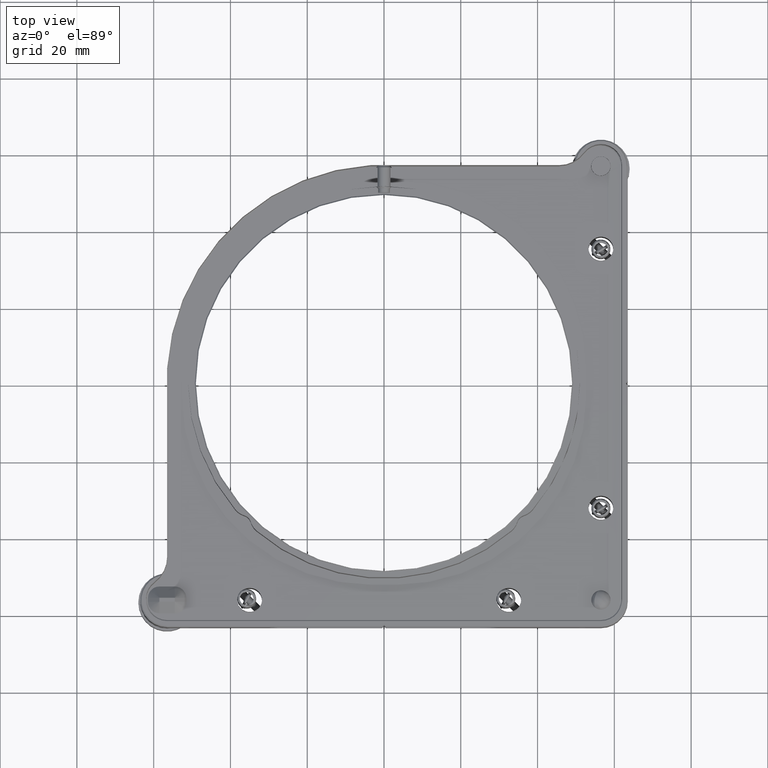
[diagram: clean part render]
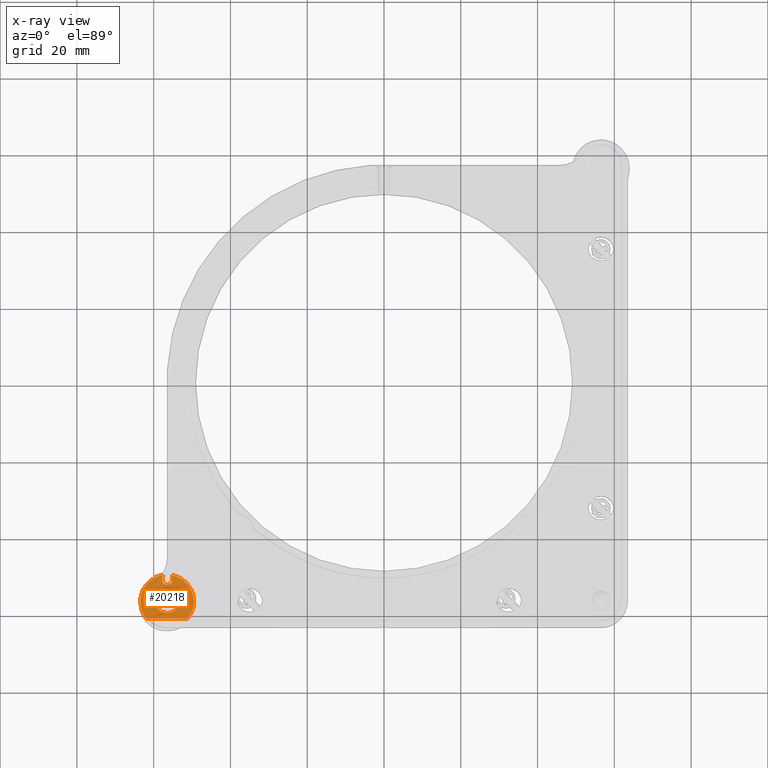
[diagram: x-ray — body ghosted, one internal face saturated and labeled with its STEP entity id]
A machine part, top view, then the same camera in x-ray: the body is ghosted and one INTERNAL B-rep face — a face not visible from any outside direction — is saturated and labeled: STEP entity #20218.
In plain terms, the highlighted planar face has unit normal (0, -0, -1).
Its self-contained STEP definition (entity closure, byte-faithful):
#171 = CARTESIAN_POINT ( 'NONE',  ( -52.87879094788482348, -50.50579296449406996, -11.25000000000001243 ) ) ;
#241 = B_SPLINE_CURVE_WITH_KNOTS ( 'NONE', 3,
 ( #13527, #3470, #19975, #13201, #3679, #5322, #13418, #10130, #14940, #20086, #8701, #20190, #5109, #5215, #5000, #11772, #16801, #9911, #18450, #1829 ),
 .UNSPECIFIED., .F., .F.,
 ( 4, 1, 1, 1, 2, 2, 2, 1, 1, 1, 2, 2, 4 ),
 ( 0.000000000000000000, 0.06250000000001393330, 0.09375000000002067790, 0.1093750000000226208, 0.1171875000000225098, 0.1250000000000223987, 0.2500000000000135447, 0.3125000000000083822, 0.3437500000000051625, 0.3593750000000031086, 0.3671875000000034972, 0.3750000000000038303, 0.5000000000000000000 ),
 .UNSPECIFIED. ) ;
#245 = FACE_BOUND ( 'NONE', #8876, .T. ) ;
#286 = CARTESIAN_POINT ( 'NONE',  ( -61.86190264738180389, -60.99999999999996447, -11.50000000000000711 ) ) ;
#373 = CARTESIAN_POINT ( 'NONE',  ( -55.01088595104975099, -53.86290914704390076, -11.75000000000000178 ) ) ;
#384 = CARTESIAN_POINT ( 'NONE',  ( -50.99856001056181753, -52.16649219538504667, -11.25000000000001421 ) ) ;
#493 = CARTESIAN_POINT ( 'NONE',  ( -49.50000000000000000, -56.49999999999997158, -11.25000000000001421 ) ) ;
#507 = B_SPLINE_CURVE_WITH_KNOTS ( 'NONE', 3,
 ( #7433, #11036, #13996, #14209, #14319, #6011, #20668, #19027, #5694, #4051, #12677, #17717, #11355, #3062, #16395, #13002, #16173, #16068, #13220, #14851 ),
 .UNSPECIFIED., .F., .F.,
 ( 4, 1, 1, 1, 2, 2, 2, 1, 1, 1, 2, 2, 4 ),
 ( 0.000000000000000000, 0.06249999999999666933, 0.09374999999999500400, 0.1093749999999944905, 0.1171874999999942407, 0.1249999999999939770, 0.2500000000000032196, 0.3125000000000071054, 0.3437500000000090483, 0.3593750000000104916, 0.3671875000000097700, 0.3750000000000091038, 0.5000000000000000000 ),
 .UNSPECIFIED. ) ;
#590 = CARTESIAN_POINT ( 'NONE',  ( -55.48473338360999207, -53.67688504029939622, -11.74999999999999645 ) ) ;
#907 = CARTESIAN_POINT ( 'NONE',  ( -55.40465746681628900, -51.67618184409376170, -11.74999999999999467 ) ) ;
#933 = VERTEX_POINT ( 'NONE', #17079 ) ;
#1066 = ORIENTED_EDGE ( 'NONE', *, *, #13709, .F. ) ;
#1118 = CARTESIAN_POINT ( 'NONE',  ( -55.57648270538499702, -51.77653576713502304, -11.75000000000000000 ) ) ;
#1368 = CIRCLE ( 'NONE', #17074, 6.999999999999999112 ) ;
#1394 = DIRECTION ( 'NONE',  ( -3.965082230804130614E-15, 1.000000000000000000, 0.000000000000000000 ) ) ;
#1443 = CARTESIAN_POINT ( 'NONE',  ( -56.69795680971785856, -52.15979102447360560, -11.75000000000000000 ) ) ;
#1555 = CARTESIAN_POINT ( 'NONE',  ( -56.80677866606009019, -52.11330726904597554, -11.74999999999999467 ) ) ;
#1669 = CARTESIAN_POINT ( 'NONE',  ( -60.80622870981806471, -50.97731293056703805, -11.25000000000001421 ) ) ;
#1684 = VERTEX_POINT ( 'NONE', #7475 ) ;
#1813 = CARTESIAN_POINT ( 'NONE',  ( -50.16734006642406030, -53.50431611130052545, -11.25000000000001776 ) ) ;
#1829 = CARTESIAN_POINT ( 'NONE',  ( -56.50000000000000000, -59.49999999999996447, -11.74999999999999645 ) ) ;
#1908 = CARTESIAN_POINT ( 'NONE',  ( -57.72474487139193400, -51.59999999999997300, -11.50000000000000533 ) ) ;
#1991 = DIRECTION ( 'NONE',  ( 0.000000000000000000, 1.000000000000000000, -1.508455196501564034E-16 ) ) ;
#2009 = CARTESIAN_POINT ( 'NONE',  ( -53.72999180854656487, -55.34771821634225830, -11.74999999999999645 ) ) ;
#2024 = CARTESIAN_POINT ( 'NONE',  ( -52.11485383539565674, -51.04274689377552932, -11.25000000000001776 ) ) ;
#2596 = ORIENTED_EDGE ( 'NONE', *, *, #6571, .T. ) ;
#2706 = CARTESIAN_POINT ( 'NONE',  ( -55.27525512860842127, -50.27198374930323865, -11.74999999999999645 ) ) ;
#2760 = CARTESIAN_POINT ( 'NONE',  ( -56.17419586049609137, -52.10432161063198464, -11.74999999999999822 ) ) ;
#2767 = CARTESIAN_POINT ( 'NONE',  ( -56.97153162392380210, -59.47372957155629791, -11.74999999999999822 ) ) ;
#2864 = CARTESIAN_POINT ( 'NONE',  ( -57.13186124071972216, -51.94277865232466240, -11.74999999999999645 ) ) ;
#2874 = CARTESIAN_POINT ( 'NONE',  ( -57.51526661639032767, -59.32311495970054693, -11.74999999999999645 ) ) ;
#2976 = CARTESIAN_POINT ( 'NONE',  ( -63.50000000000000000, -56.49999999999997158, -11.24999999999986500 ) ) ;
#2977 = CARTESIAN_POINT ( 'NONE',  ( -56.66825393247299303, -52.17001119424212163, -11.74999999999999645 ) ) ;
#3062 = CARTESIAN_POINT ( 'NONE',  ( -57.77037198453510314, -53.78125533051552054, -11.74999999999999822 ) ) ;
#3081 = CARTESIAN_POINT ( 'NONE',  ( -56.82529838702885172, -52.10456435241613349, -11.74999999999999467 ) ) ;
#3186 = CARTESIAN_POINT ( 'NONE',  ( -56.17520551547521990, -52.10480564513080282, -11.74999999999999645 ) ) ;
#3300 = CARTESIAN_POINT ( 'NONE',  ( -61.51481666413465632, -51.60807952108212504, -11.25000000000001421 ) ) ;
#3415 = B_SPLINE_CURVE_WITH_KNOTS ( 'NONE', 3,
 ( #14558, #6039, #2767, #11170, #17850, #2874, #6264, #14347, #9536, #21018, #4403, #12930, #15989, #4079, #10738, #14130, #9208, #5940, #12601, #4295 ),
 .UNSPECIFIED., .F., .F.,
 ( 4, 1, 1, 1, 2, 2, 2, 1, 1, 1, 2, 2, 4 ),
 ( 0.5000000000000000000, 0.5625000000000022204, 0.5937500000000044409, 0.6093750000000044409, 0.6171875000000044409, 0.6250000000000044409, 0.7499999999999947820, 0.8124999999999892308, 0.8437499999999857891, 0.8593749999999846789, 0.8671874999999840128, 0.8749999999999833467, 1.000000000000000000 ),
 .UNSPECIFIED. ) ;
#3453 = CARTESIAN_POINT ( 'NONE',  ( -53.14724791411889271, -50.35509803905831205, -11.25000000000001599 ) ) ;
#3470 = CARTESIAN_POINT ( 'NONE',  ( -53.50000000000000711, -56.69065434817412807, -11.74999999999999645 ) ) ;
#3555 = CARTESIAN_POINT ( 'NONE',  ( -53.10374361391060916, -50.37904722462926799, -11.25000000000001243 ) ) ;
#3663 = CARTESIAN_POINT ( 'NONE',  ( -51.70690492401360672, -51.38078893018316506, -11.25000000000001599 ) ) ;
#3679 = CARTESIAN_POINT ( 'NONE',  ( -53.65303956252799367, -57.44830117256898916, -11.75000000000000000 ) ) ;
#3764 = CARTESIAN_POINT ( 'NONE',  ( -50.46342869091496652, -52.95450075724163241, -11.25000000000001599 ) ) ;
#3968 = CARTESIAN_POINT ( 'NONE',  ( -62.13751646342939949, -52.32895559869112390, -11.25000000000001599 ) ) ;
#4051 = CARTESIAN_POINT ( 'NONE',  ( -58.91391262869967704, -54.67137699670567486, -11.74999999999999822 ) ) ;
#4079 = CARTESIAN_POINT ( 'NONE',  ( -59.21874466948400340, -57.77037198453343336, -11.74999999999999289 ) ) ;
#4238 = CARTESIAN_POINT ( 'NONE',  ( -53.50000000000000711, -56.49999999999995737, -11.50000000000000888 ) ) ;
#4239 = VERTEX_POINT ( 'NONE', #2976 ) ;
#4295 = CARTESIAN_POINT ( 'NONE',  ( -59.50000000000001421, -56.49999999999996447, -11.74999999999999645 ) ) ;
#4403 = CARTESIAN_POINT ( 'NONE',  ( -58.76766901369177987, -58.47502420098750520, -11.74999999999999822 ) ) ;
#4502 = CARTESIAN_POINT ( 'NONE',  ( -56.87078852290647291, -52.08273032632646249, -11.74999999999999467 ) ) ;
#4610 = CARTESIAN_POINT ( 'NONE',  ( -57.11853736122630210, -51.95021140728557185, -11.74999999999999289 ) ) ;
#4720 = CARTESIAN_POINT ( 'NONE',  ( -57.46975168847638571, -51.75011978280186753, -11.74999999999999289 ) ) ;
#4825 = CARTESIAN_POINT ( 'NONE',  ( -57.12624791007910119, -51.94591328863022284, -11.74999999999999467 ) ) ;
#4863 = CARTESIAN_POINT ( 'NONE',  ( -51.13809735261819611, -60.99999999999996447, -11.50000000000000711 ) ) ;
#4940 = CARTESIAN_POINT ( 'NONE',  ( -61.04698956541316335, -51.17687648630293751, -11.25000000000001599 ) ) ;
#5000 = CARTESIAN_POINT ( 'NONE',  ( -55.30026454324347895, -59.24983098182473640, -11.75000000000000000 ) ) ;
#5109 = CARTESIAN_POINT ( 'NONE',  ( -55.06861732376687968, -59.14046645542934044, -11.74999999999999645 ) ) ;
#5199 = CARTESIAN_POINT ( 'NONE',  ( -53.67682099016612796, -50.08873672678111433, -11.25000000000001421 ) ) ;
#5215 = CARTESIAN_POINT ( 'NONE',  ( -55.22962801546763245, -59.21874466948609950, -11.74999999999999467 ) ) ;
#5322 = CARTESIAN_POINT ( 'NONE',  ( -53.67690056958880263, -57.51530586231231013, -11.74999999999999467 ) ) ;
#5403 = CARTESIAN_POINT ( 'NONE',  ( -56.50000000000000000, -53.49999999999996447, -11.74999999999999645 ) ) ;
#5524 = CARTESIAN_POINT ( 'NONE',  ( -53.36613295714843019, -50.23916437057071249, -11.25000000000001599 ) ) ;
#5611 = CARTESIAN_POINT ( 'NONE',  ( -61.86190264738180389, -60.99999999999996447, -11.74999999999999645 ) ) ;
#5623 = EDGE_CURVE ( 'NONE', #13689, #16462, #18395, .T. ) ;
#5694 = CARTESIAN_POINT ( 'NONE',  ( -59.13709085295600687, -55.01088595105229473, -11.74999999999999645 ) ) ;
#5919 = CARTESIAN_POINT ( 'NONE',  ( -56.50000000000000000, -56.49999999999996447, -11.25000000000001776 ) ) ;
#5937 = CARTESIAN_POINT ( 'NONE',  ( -63.21257419439920966, -54.50989118245834675, -11.25000000000001421 ) ) ;
#5940 = CARTESIAN_POINT ( 'NONE',  ( -59.42978830106244459, -57.24976015017485054, -11.74999999999999645 ) ) ;
#6011 = CARTESIAN_POINT ( 'NONE',  ( -59.32309943041123290, -55.48469413768942360, -11.74999999999999645 ) ) ;
#6030 = CARTESIAN_POINT ( 'NONE',  ( -55.86948034472536051, -51.94352867314581346, -11.74999999999999467 ) ) ;
#6039 = CARTESIAN_POINT ( 'NONE',  ( -56.69056920447892622, -59.50003369066163117, -11.75000000000000000 ) ) ;
#6143 = CARTESIAN_POINT ( 'NONE',  ( -57.03010284008698960, -51.99900277093490786, -11.74999999999999645 ) ) ;
#6254 = CARTESIAN_POINT ( 'NONE',  ( -56.32719207213949630, -52.16847988246330914, -11.74999999999999822 ) ) ;
#6264 = CARTESIAN_POINT ( 'NONE',  ( -57.55985180046413063, -59.30665172292980714, -11.75000000000000000 ) ) ;
#6348 = B_SPLINE_CURVE_WITH_KNOTS ( 'NONE', 3,
 ( #5611, #20800, #15656, #9318 ),
 .UNSPECIFIED., .F., .F.,
 ( 4, 4 ),
 ( 0.000000000000000000, 1.000000000000000000 ),
 .UNSPECIFIED. ) ;
#6360 = CARTESIAN_POINT ( 'NONE',  ( -57.27284681452835713, -51.86397521337703154, -11.74999999999999467 ) ) ;
#6471 = CARTESIAN_POINT ( 'NONE',  ( -56.29729708329985982, -52.15780052147602674, -11.74999999999999467 ) ) ;
#6571 = EDGE_CURVE ( 'NONE', #4239, #11370, #15637, .T. ) ;
#6744 = ORIENTED_EDGE ( 'NONE', *, *, #16747, .F. ) ;
#6840 = CARTESIAN_POINT ( 'NONE',  ( -54.31297609194554354, -49.82920141169947215, -11.25000000000001599 ) ) ;
#6843 = CARTESIAN_POINT ( 'NONE',  ( -56.50000000000000000, -56.49999999999996447, -11.25000000000001421 ) ) ;
#7040 = CARTESIAN_POINT ( 'NONE',  ( -54.03906391375236495, -54.76182743280177334, -11.75000000000000000 ) ) ;
#7052 = CARTESIAN_POINT ( 'NONE',  ( -49.63186560256959012, -54.93075197246490404, -11.25000000000001599 ) ) ;
#7255 = CARTESIAN_POINT ( 'NONE',  ( -54.67137699670841045, -54.08608737129495125, -11.74999999999999822 ) ) ;
#7433 = CARTESIAN_POINT ( 'NONE',  ( -59.50000000000001421, -56.49999999999996447, -11.74999999999999645 ) ) ;
#7475 = CARTESIAN_POINT ( 'NONE',  ( -55.27525512860842127, -51.59999999999997300, -11.50000000000000533 ) ) ;
#7540 = ORIENTED_EDGE ( 'NONE', *, *, #15695, .F. ) ;
#7571 = CARTESIAN_POINT ( 'NONE',  ( -63.12075761761007442, -54.22707481706417099, -11.25000000000001954 ) ) ;
#7617 = CARTESIAN_POINT ( 'NONE',  ( -55.27525512860842127, -49.60797562395486437, -11.74999999999999645 ) ) ;
#7738 = CARTESIAN_POINT ( 'NONE',  ( -57.72474487139157873, -51.59999999999997300, -11.74999999999999645 ) ) ;
#7769 = EDGE_CURVE ( 'NONE', #12515, #11370, #18685, .T. ) ;
#7779 = CARTESIAN_POINT ( 'NONE',  ( -56.67322838796347639, -52.16832624092952386, -11.74999999999999822 ) ) ;
#7790 = CARTESIAN_POINT ( 'NONE',  ( -63.13672571792121602, -54.27409829416538400, -11.25000000000001776 ) ) ;
#7887 = CARTESIAN_POINT ( 'NONE',  ( -56.02259564909524414, -52.02777617417482503, -11.74999999999999645 ) ) ;
#7895 = CARTESIAN_POINT ( 'NONE',  ( -59.96128227114564169, -50.41558399290642001, -11.25000000000001954 ) ) ;
#7996 = CARTESIAN_POINT ( 'NONE',  ( -56.20960413101968811, -52.12111964587168700, -11.74999999999999822 ) ) ;
#8099 = CARTESIAN_POINT ( 'NONE',  ( -56.39962161108772420, -52.19220148613633370, -11.74999999999999645 ) ) ;
#8209 = CARTESIAN_POINT ( 'NONE',  ( -57.72474487139157873, -51.59999999999997300, -11.74999999999999645 ) ) ;
#8217 = CARTESIAN_POINT ( 'NONE',  ( -57.72474487139299981, -49.60797562395508464, -11.25000000000001599 ) ) ;
#8329 = AXIS2_PLACEMENT_3D ( 'NONE', #20246, #10292, #1991 ) ;
#8621 = AXIS2_PLACEMENT_3D ( 'NONE', #6843, #15033, #1394 ) ;
#8682 = CARTESIAN_POINT ( 'NONE',  ( -50.02409909008064659, -53.83878147590056074, -11.25000000000001599 ) ) ;
#8701 = CARTESIAN_POINT ( 'NONE',  ( -54.52497579901393721, -58.76766901369450125, -11.75000000000000000 ) ) ;
#8876 = EDGE_LOOP ( 'NONE', ( #13055, #16789, #17055, #15004 ) ) ;
#8898 = CARTESIAN_POINT ( 'NONE',  ( -50.63132769187330950, -52.68287588789523568, -11.25000000000001776 ) ) ;
#9143 = CARTESIAN_POINT ( 'NONE',  ( -55.27525512860842127, -50.93599187465159872, -11.74999999999999645 ) ) ;
#9156 = CARTESIAN_POINT ( 'NONE',  ( -57.72474487139157873, -50.93599187465159872, -11.74999999999999645 ) ) ;
#9208 = CARTESIAN_POINT ( 'NONE',  ( -59.28058844082013223, -57.62644187734251489, -11.74999999999999822 ) ) ;
#9318 = CARTESIAN_POINT ( 'NONE',  ( -51.13809735261819611, -60.99999999999996447, -11.74999999999999645 ) ) ;
#9421 = CARTESIAN_POINT ( 'NONE',  ( -56.78162523814202700, -52.12489955037472100, -11.74999999999999645 ) ) ;
#9536 = CARTESIAN_POINT ( 'NONE',  ( -57.98911404895568467, -59.13709085295332102, -11.74999999999999822 ) ) ;
#9646 = B_SPLINE_CURVE_WITH_KNOTS ( 'NONE', 3,
 ( #5403, #12166, #15554, #10309, #16989, #590, #12275, #20264, #373, #7255, #15334, #7040, #18841, #20590, #13705, #2009, #13602, #12060, #10413, #17306 ),
 .UNSPECIFIED., .F., .F.,
 ( 4, 1, 1, 1, 2, 2, 2, 1, 1, 1, 2, 2, 4 ),
 ( 0.5000000000000000000, 0.5624999999999770184, 0.5937499999999666933, 0.6093749999999626965, 0.6171874999999616973, 0.6249999999999606981, 0.7499999999999704681, 0.8124999999999745759, 0.8437499999999772404, 0.8593749999999794609, 0.8671874999999802380, 0.8749999999999809042, 1.000000000000000000 ),
 .UNSPECIFIED. ) ;
#9746 = CARTESIAN_POINT ( 'NONE',  ( -60.09759000669149742, -50.49482234149935778, -11.25000000000001421 ) ) ;
#9843 = CARTESIAN_POINT ( 'NONE',  ( -56.62306057232590462, -52.18384891963473393, -11.74999999999999645 ) ) ;
#9911 = CARTESIAN_POINT ( 'NONE',  ( -55.75006942233357421, -59.42972079643551098, -11.74999999999999822 ) ) ;
#9963 = CARTESIAN_POINT ( 'NONE',  ( -59.24671543387646011, -50.01236839837516612, -11.25000000000001599 ) ) ;
#10073 = B_SPLINE_CURVE_WITH_KNOTS ( 'NONE', 3,
 ( #20907, #907, #1118, #21445, #11483, #19368, #19476, #13134, #16089, #6030, #12808, #7887, #17950, #21228, #14548, #16306, #2760, #3186, #7996, #19694, #6471, #11056, #6254, #14441, #8099, #12919, #17736, #19585, #9843, #16413, #16516, #2977, #7779, #1443, #14765, #9421, #1555, #21119, #3081, #19801, #4502, #11160, #6143, #12697, #17841, #4610, #4825, #2864, #6360, #4720, #8209 ),
 .UNSPECIFIED., .F., .F.,
 ( 4, 1, 1, 1, 1, 1, 2, 2, 1, 1, 1, 1, 2, 2, 1, 1, 2, 2, 2, 1, 1, 1, 2, 2, 1, 1, 1, 2, 2, 1, 1, 1, 1, 2, 2, 4 ),
 ( 0.000000000000000000, 0.1250000000002766953, 0.1875000000004131417, 0.2187500000004792000, 0.2343750000005079825, 0.2421875000005248857, 0.2460937500005312972, 0.2500000000005377365, 0.3125000000006653011, 0.3437500000007275291, 0.3593750000007586154, 0.3671875000007763234, 0.3710937500007830403, 0.3750000000007897016, 0.4062500000008636980, 0.4218750000009006684, 0.4296875000009190981, 0.4375000000009375833, 0.5000000000010876855, 0.5312500000011584067, 0.5468750000011974866, 0.5546875000012125856, 0.5585937500012191359, 0.5625000000012256862, 0.5937500000012460033, 0.6093750000012597701, 0.6171875000012665424, 0.6210937500012655432, 0.6250000000012645440, 0.6875000000011625145, 0.7187500000011081136, 0.7343750000010809131, 0.7421875000010645929, 0.7460937500010521584, 0.7500000000010396128, 1.000000000000000000 ),
 .UNSPECIFIED. ) ;
#10130 = CARTESIAN_POINT ( 'NONE',  ( -53.70111796867281129, -57.58023225866858752, -11.74999999999999645 ) ) ;
#10220 = CARTESIAN_POINT ( 'NONE',  ( -52.36133892021113923, -50.85351143283936892, -11.25000000000001599 ) ) ;
#10292 = DIRECTION ( 'NONE',  ( 4.930380657631383996E-32, -1.508455196501564034E-16, -1.000000000000000000 ) ) ;
#10309 = CARTESIAN_POINT ( 'NONE',  ( -55.70923881445330750, -53.60307921382108987, -11.74999999999999822 ) ) ;
#10361 = ORIENTED_EDGE ( 'NONE', *, *, #13677, .F. ) ;
#10413 = CARTESIAN_POINT ( 'NONE',  ( -53.50000000000000711, -56.11833455939479620, -11.74999999999999822 ) ) ;
#10626 = CARTESIAN_POINT ( 'NONE',  ( -61.72921454794973783, -51.84162613548698317, -11.25000000000001243 ) ) ;
#10738 = CARTESIAN_POINT ( 'NONE',  ( -59.24983098182350005, -57.69973545675719606, -11.75000000000000000 ) ) ;
#10937 = DIRECTION ( 'NONE',  ( 0.000000000000000000, 1.000000000000000000, 0.000000000000000000 ) ) ;
#11036 = CARTESIAN_POINT ( 'NONE',  ( -59.50000000000002132, -56.30934565182969465, -11.74999999999999467 ) ) ;
#11056 = CARTESIAN_POINT ( 'NONE',  ( -56.31538319353077782, -52.16434152266246826, -11.74999999999999645 ) ) ;
#11062 = CARTESIAN_POINT ( 'NONE',  ( -63.30632239622597979, -54.84210617991402614, -11.25000000000001599 ) ) ;
#11160 = CARTESIAN_POINT ( 'NONE',  ( -56.93689616256843067, -52.04914009823605880, -11.75000000000000000 ) ) ;
#11168 = CARTESIAN_POINT ( 'NONE',  ( -61.28504839120665793, -51.38971008247302308, -11.25000000000001599 ) ) ;
#11170 = CARTESIAN_POINT ( 'NONE',  ( -57.29076118554758068, -59.39692078617886750, -11.75000000000000000 ) ) ;
#11245 = VERTEX_POINT ( 'NONE', #19075 ) ;
#11277 = CARTESIAN_POINT ( 'NONE',  ( -61.12845390056287442, -51.24750316246605308, -11.25000000000001599 ) ) ;
#11355 = CARTESIAN_POINT ( 'NONE',  ( -57.93138267623777438, -53.85953354457349462, -11.74999999999999645 ) ) ;
#11370 = VERTEX_POINT ( 'NONE', #17332 ) ;
#11483 = CARTESIAN_POINT ( 'NONE',  ( -55.80894967485438940, -51.90952867546504734, -11.75000000000000000 ) ) ;
#11754 = CARTESIAN_POINT ( 'NONE',  ( -52.61421730473200853, -50.67098742928641997, -11.25000000000001421 ) ) ;
#11772 = CARTESIAN_POINT ( 'NONE',  ( -55.34771821634252120, -59.27000819145361277, -11.74999999999999645 ) ) ;
#11861 = CARTESIAN_POINT ( 'NONE',  ( -49.95800561214826274, -54.00859035971286204, -11.25000000000001599 ) ) ;
#11932 = FACE_OUTER_BOUND ( 'NONE', #16708, .T. ) ;
#12037 = EDGE_CURVE ( 'NONE', #16383, #933, #3415, .T. ) ;
#12060 = CARTESIAN_POINT ( 'NONE',  ( -53.57021169893757673, -55.75023984983291570, -11.74999999999999822 ) ) ;
#12166 = CARTESIAN_POINT ( 'NONE',  ( -56.30943079552178432, -53.49996630933830488, -11.74999999999999645 ) ) ;
#12275 = CARTESIAN_POINT ( 'NONE',  ( -55.44014819953606832, -53.69334827707013602, -11.75000000000000178 ) ) ;
#12489 = VERTEX_POINT ( 'NONE', #4863 ) ;
#12493 = CARTESIAN_POINT ( 'NONE',  ( -63.50000000000000000, -56.49999999999997158, -11.24999999999986500 ) ) ;
#12515 = VERTEX_POINT ( 'NONE', #1908 ) ;
#12580 = DIRECTION ( 'NONE',  ( -4.930380657631379617E-32, -4.044942450813011480E-31, 1.000000000000000000 ) ) ;
#12600 = CARTESIAN_POINT ( 'NONE',  ( -63.03532545979594204, -53.98341618097028061, -11.25000000000001599 ) ) ;
#12601 = CARTESIAN_POINT ( 'NONE',  ( -59.50000000000001421, -56.88166544061299135, -11.74999999999999645 ) ) ;
#12640 = CARTESIAN_POINT ( 'NONE',  ( -49.50000000000000000, -56.49999999999997158, -11.25000000000001421 ) ) ;
#12677 = CARTESIAN_POINT ( 'NONE',  ( -58.47502420098965814, -54.23233098630765170, -11.74999999999999822 ) ) ;
#12697 = CARTESIAN_POINT ( 'NONE',  ( -57.08072645332450890, -51.97119692531870783, -11.74999999999999645 ) ) ;
#12703 = CARTESIAN_POINT ( 'NONE',  ( -63.45055039903640903, -55.51385775341849182, -11.25000000000001243 ) ) ;
#12808 = CARTESIAN_POINT ( 'NONE',  ( -55.93684561887626927, -51.98112666570629870, -11.74999999999999822 ) ) ;
#12816 = CARTESIAN_POINT ( 'NONE',  ( -62.64031524425366371, -53.13731549925459774, -11.25000000000001954 ) ) ;
#12919 = CARTESIAN_POINT ( 'NONE',  ( -56.45787944649741519, -52.20166935223969062, -11.74999999999999467 ) ) ;
#12930 = CARTESIAN_POINT ( 'NONE',  ( -58.96093608624431681, -58.23817256719917879, -11.74999999999999645 ) ) ;
#13002 = CARTESIAN_POINT ( 'NONE',  ( -57.65228178365833145, -53.72999180854684198, -11.74999999999999645 ) ) ;
#13055 = ORIENTED_EDGE ( 'NONE', *, *, #19434, .F. ) ;
#13134 = CARTESIAN_POINT ( 'NONE',  ( -55.86462128480971501, -51.94081189488774442, -11.75000000000000000 ) ) ;
#13201 = CARTESIAN_POINT ( 'NONE',  ( -53.60312343281454162, -57.29087293664755265, -11.74999999999999289 ) ) ;
#13220 = CARTESIAN_POINT ( 'NONE',  ( -56.88113840895647400, -53.50006738132329787, -11.74999999999999822 ) ) ;
#13418 = CARTESIAN_POINT ( 'NONE',  ( -53.69335643652728152, -57.55987242120277614, -11.74999999999999822 ) ) ;
#13515 = CARTESIAN_POINT ( 'NONE',  ( -55.27525512860842127, -49.60797562395485727, -11.50000000000000533 ) ) ;
#13527 = CARTESIAN_POINT ( 'NONE',  ( -53.50000000000000000, -56.49999999999996447, -11.74999999999999645 ) ) ;
#13583 = PLANE ( 'NONE',  #8329 ) ;
#13602 = CARTESIAN_POINT ( 'NONE',  ( -53.71941155917989619, -55.37355812265693089, -11.74999999999999467 ) ) ;
#13615 = CARTESIAN_POINT ( 'NONE',  ( -52.19535227689318901, -50.97904511048809439, -11.25000000000001776 ) ) ;
#13677 = EDGE_CURVE ( 'NONE', #13689, #1684, #17241, .T. ) ;
#13689 = VERTEX_POINT ( 'NONE', #13515 ) ;
#13705 = CARTESIAN_POINT ( 'NONE',  ( -53.75016901817566861, -55.30026454324303131, -11.74999999999999822 ) ) ;
#13709 = EDGE_CURVE ( 'NONE', #12489, #16462, #13849, .T. ) ;
#13719 = CARTESIAN_POINT ( 'NONE',  ( -50.51871265476247430, -52.86193592254583962, -11.25000000000001243 ) ) ;
#13827 = CARTESIAN_POINT ( 'NONE',  ( -54.88358738331748299, -49.67757680876813708, -11.25000000000001599 ) ) ;
#13849 = CIRCLE ( 'NONE', #8621, 6.999999999999999112 ) ;
#13934 = CARTESIAN_POINT ( 'NONE',  ( -50.30906779553885144, -53.22646420397127542, -11.25000000000001066 ) ) ;
#13936 = VERTEX_POINT ( 'NONE', #4238 ) ;
#13996 = CARTESIAN_POINT ( 'NONE',  ( -59.47367061289844514, -56.02831937461633061, -11.75000000000000178 ) ) ;
#14129 = CARTESIAN_POINT ( 'NONE',  ( -62.78350582511647815, -53.41310783825861819, -11.25000000000001776 ) ) ;
#14130 = CARTESIAN_POINT ( 'NONE',  ( -59.27000819145299459, -57.65228178365779144, -11.74999999999999467 ) ) ;
#14209 = CARTESIAN_POINT ( 'NONE',  ( -59.39687656718546549, -55.70912706335750642, -11.74999999999999645 ) ) ;
#14318 = VERTEX_POINT ( 'NONE', #286 ) ;
#14319 = CARTESIAN_POINT ( 'NONE',  ( -59.34696043747204186, -55.55169882743396670, -11.74999999999999645 ) ) ;
#14347 = CARTESIAN_POINT ( 'NONE',  ( -57.58023225866875805, -59.29888203132688318, -11.74999999999999822 ) ) ;
#14441 = CARTESIAN_POINT ( 'NONE',  ( -56.33100397684813743, -52.16979519260928555, -11.74999999999999645 ) ) ;
#14449 = CARTESIAN_POINT ( 'NONE',  ( -63.11303790885333598, -54.20470427747915210, -11.25000000000001954 ) ) ;
#14548 = CARTESIAN_POINT ( 'NONE',  ( -56.16186078173712559, -52.09840403691445943, -11.74999999999999467 ) ) ;
#14556 = CARTESIAN_POINT ( 'NONE',  ( -59.98501077297980544, -50.42913940978735354, -11.25000000000001599 ) ) ;
#14558 = CARTESIAN_POINT ( 'NONE',  ( -56.50000000000000000, -59.49999999999996447, -11.74999999999999645 ) ) ;
#14617 = CARTESIAN_POINT ( 'NONE',  ( -57.72474487139157873, -50.27198374930323865, -11.74999999999999645 ) ) ;
#14765 = CARTESIAN_POINT ( 'NONE',  ( -56.73405078738195328, -52.14579775319803900, -11.75000000000000000 ) ) ;
#14851 = CARTESIAN_POINT ( 'NONE',  ( -56.50000000000000000, -53.49999999999996447, -11.74999999999999645 ) ) ;
#14917 = EDGE_CURVE ( 'NONE', #11245, #13936, #9646, .T. ) ;
#14940 = CARTESIAN_POINT ( 'NONE',  ( -53.86290914705133304, -57.98911404895765287, -11.74999999999999822 ) ) ;
#14989 = CARTESIAN_POINT ( 'NONE',  ( -60.25321562360890226, -50.58960668729960730, -11.25000000000001599 ) ) ;
#15004 = ORIENTED_EDGE ( 'NONE', *, *, #12037, .F. ) ;
#15033 = DIRECTION ( 'NONE',  ( -4.930380657631379617E-32, -4.044942450813011480E-31, 1.000000000000000000 ) ) ;
#15138 = CARTESIAN_POINT ( 'NONE',  ( -50.80612768901072229, -52.41844511820760033, -11.25000000000001776 ) ) ;
#15334 = CARTESIAN_POINT ( 'NONE',  ( -54.23233098630633009, -54.52497579901302061, -11.74999999999999645 ) ) ;
#15348 = CARTESIAN_POINT ( 'NONE',  ( -49.91303310824579142, -54.13092516780999830, -11.25000000000001243 ) ) ;
#15554 = CARTESIAN_POINT ( 'NONE',  ( -56.02846837607738451, -53.52627042844363814, -11.74999999999999645 ) ) ;
#15566 = CARTESIAN_POINT ( 'NONE',  ( -49.50000000000000711, -55.70404640206488267, -11.25000000000001599 ) ) ;
#15637 = B_SPLINE_CURVE_WITH_KNOTS ( 'NONE', 3,
 ( #12493, #19157, #12703, #11062, #5937, #17305, #7790, #7571, #14449, #12600, #20914, #14129, #17743, #12816, #15877, #3968, #10626, #3300, #11168, #11277, #4940, #1669, #19702, #14989, #9746, #19810, #14556, #7895, #9963, #18065, #8217 ),
 .UNSPECIFIED., .F., .F.,
 ( 4, 1, 1, 1, 1, 2, 2, 1, 2, 2, 2, 1, 2, 2, 1, 1, 1, 2, 2, 4 ),
 ( 0.000000000000000000, 0.1250000000000020817, 0.1875000000000027478, 0.2187500000000046907, 0.2343750000000063283, 0.2421875000000071054, 0.2500000000000079381, 0.3125000000000132117, 0.3437500000000148770, 0.3750000000000165978, 0.5000000000000253131, 0.5625000000000281997, 0.5937500000000297540, 0.6250000000000313083, 0.6875000000000371925, 0.7187500000000393019, 0.7343750000000399680, 0.7421875000000397460, 0.7500000000000396350, 1.000000000000000000 ),
 .UNSPECIFIED. ) ;
#15656 = CARTESIAN_POINT ( 'NONE',  ( -54.71269911753940107, -60.99999999999996447, -11.74999999999999645 ) ) ;
#15695 = EDGE_CURVE ( 'NONE', #1684, #12515, #10073, .T. ) ;
#15877 = CARTESIAN_POINT ( 'NONE',  ( -62.37886372737202123, -52.67651420040803600, -11.25000000000001599 ) ) ;
#15989 = CARTESIAN_POINT ( 'NONE',  ( -59.14046645542575931, -57.93138267623495352, -11.74999999999999289 ) ) ;
#16068 = CARTESIAN_POINT ( 'NONE',  ( -57.24993057767020588, -53.57027920356441086, -11.75000000000000000 ) ) ;
#16089 = CARTESIAN_POINT ( 'NONE',  ( -55.86905390248202963, -51.94328969994759859, -11.74999999999999822 ) ) ;
#16173 = CARTESIAN_POINT ( 'NONE',  ( -57.62643122562408138, -53.71940734014068397, -11.74999999999999645 ) ) ;
#16306 = CARTESIAN_POINT ( 'NONE',  ( -56.16929105988697302, -52.10197467492760381, -11.74999999999999645 ) ) ;
#16383 = VERTEX_POINT ( 'NONE', #19422 ) ;
#16395 = CARTESIAN_POINT ( 'NONE',  ( -57.69973545675818372, -53.75016901817623705, -11.74999999999999289 ) ) ;
#16413 = CARTESIAN_POINT ( 'NONE',  ( -56.64919285641074964, -52.17617401267214206, -11.74999999999999645 ) ) ;
#16462 = VERTEX_POINT ( 'NONE', #12640 ) ;
#16516 = CARTESIAN_POINT ( 'NONE',  ( -56.66060160848158489, -52.17252437399260145, -11.74999999999999645 ) ) ;
#16708 = EDGE_LOOP ( 'NONE', ( #17004, #2596, #19560, #7540, #10361, #17029, #1066, #6744 ) ) ;
#16747 = EDGE_CURVE ( 'NONE', #14318, #12489, #6348, .T. ) ;
#16789 = ORIENTED_EDGE ( 'NONE', *, *, #14917, .F. ) ;
#16801 = CARTESIAN_POINT ( 'NONE',  ( -55.37356877437566283, -59.28059265985923787, -11.74999999999999467 ) ) ;
#16893 = CARTESIAN_POINT ( 'NONE',  ( -49.90383840786932979, -54.15665935928556252, -11.25000000000001599 ) ) ;
#16989 = CARTESIAN_POINT ( 'NONE',  ( -55.55176401557319110, -53.65301376811509471, -11.74999999999999467 ) ) ;
#17001 = CARTESIAN_POINT ( 'NONE',  ( -51.40693441954888954, -51.67922347889339107, -11.25000000000001776 ) ) ;
#17004 = ORIENTED_EDGE ( 'NONE', *, *, #19940, .F. ) ;
#17029 = ORIENTED_EDGE ( 'NONE', *, *, #5623, .T. ) ;
#17055 = ORIENTED_EDGE ( 'NONE', *, *, #17356, .F. ) ;
#17074 = AXIS2_PLACEMENT_3D ( 'NONE', #5919, #12580, #10937 ) ;
#17079 = CARTESIAN_POINT ( 'NONE',  ( -59.50000000000000711, -56.49999999999995737, -11.50000000000000888 ) ) ;
#17213 = CARTESIAN_POINT ( 'NONE',  ( -53.21263632010752076, -50.31954318902767653, -11.25000000000001421 ) ) ;
#17241 = B_SPLINE_CURVE_WITH_KNOTS ( 'NONE', 3,
 ( #7617, #2706, #9143, #19314 ),
 .UNSPECIFIED., .F., .F.,
 ( 4, 4 ),
 ( 0.000000000000000000, 1.000000000000000000 ),
 .UNSPECIFIED. ) ;
#17305 = CARTESIAN_POINT ( 'NONE',  ( -63.16029154338043128, -54.34469888105467561, -11.25000000000001776 ) ) ;
#17306 = CARTESIAN_POINT ( 'NONE',  ( -53.50000000000000000, -56.49999999999996447, -11.74999999999999645 ) ) ;
#17332 = CARTESIAN_POINT ( 'NONE',  ( -57.72474487139228216, -49.60797562395497806, -11.49999999999981526 ) ) ;
#17356 = EDGE_CURVE ( 'NONE', #933, #11245, #507, .T. ) ;
#17717 = CARTESIAN_POINT ( 'NONE',  ( -58.23817256720289492, -54.03906391375467422, -11.74999999999999467 ) ) ;
#17736 = CARTESIAN_POINT ( 'NONE',  ( -56.53297119449325692, -52.20034262230954880, -11.74999999999999645 ) ) ;
#17743 = CARTESIAN_POINT ( 'NONE',  ( -62.68895012851071158, -53.22771773544491936, -11.25000000000001954 ) ) ;
#17841 = CARTESIAN_POINT ( 'NONE',  ( -57.10704332856285248, -51.95660970701923986, -11.75000000000000000 ) ) ;
#17850 = CARTESIAN_POINT ( 'NONE',  ( -57.44823598442732759, -59.34698623188482713, -11.74999999999999645 ) ) ;
#17950 = CARTESIAN_POINT ( 'NONE',  ( -56.10626805011595053, -52.07094808245084749, -11.74999999999999645 ) ) ;
#18065 = CARTESIAN_POINT ( 'NONE',  ( -58.50842081413334483, -49.74723849351796900, -11.25000000000001954 ) ) ;
#18395 = B_SPLINE_CURVE_WITH_KNOTS ( 'NONE', 3,
 ( #18748, #13827, #6840, #5199, #5524, #17213, #3453, #3555, #18854, #171, #11754, #10220, #13615, #2024, #3663, #17001, #384, #15138, #8898, #13719, #3764, #13934, #1813, #8682, #11861, #20493, #15348, #16893, #7052, #15566, #493 ),
 .UNSPECIFIED., .F., .F.,
 ( 4, 1, 1, 1, 1, 2, 2, 1, 2, 2, 2, 1, 2, 2, 1, 1, 1, 2, 2, 4 ),
 ( 0.000000000000000000, 0.1250000000000260347, 0.1875000000000394407, 0.2187500000000461575, 0.2343750000000480171, 0.2421875000000479616, 0.2500000000000479061, 0.3125000000000427991, 0.3437500000000400235, 0.3750000000000371925, 0.5000000000000248690, 0.5625000000000194289, 0.5937500000000176525, 0.6250000000000157652, 0.6875000000000093259, 0.7187500000000059952, 0.7343750000000044409, 0.7421875000000029976, 0.7500000000000016653, 1.000000000000000000 ),
 .UNSPECIFIED. ) ;
#18450 = CARTESIAN_POINT ( 'NONE',  ( -56.11886159104217597, -59.49993261867663819, -11.74999999999999645 ) ) ;
#18685 = B_SPLINE_CURVE_WITH_KNOTS ( 'NONE', 3,
 ( #7738, #9156, #14617, #20971 ),
 .UNSPECIFIED., .F., .F.,
 ( 4, 4 ),
 ( 0.000000000000000000, 1.000000000000000000 ),
 .UNSPECIFIED. ) ;
#18748 = CARTESIAN_POINT ( 'NONE',  ( -55.27525512860842127, -49.60797562395486437, -11.25000000000001599 ) ) ;
#18841 = CARTESIAN_POINT ( 'NONE',  ( -53.85953354457173248, -55.06861732376570728, -11.74999999999999822 ) ) ;
#18854 = CARTESIAN_POINT ( 'NONE',  ( -53.08306880956538265, -50.39056188528013536, -11.25000000000001421 ) ) ;
#19027 = CARTESIAN_POINT ( 'NONE',  ( -59.29888203132676949, -55.41976774133073036, -11.74999999999999467 ) ) ;
#19075 = CARTESIAN_POINT ( 'NONE',  ( -56.50000000000000000, -53.49999999999995737, -11.50000000000000533 ) ) ;
#19157 = CARTESIAN_POINT ( 'NONE',  ( -63.49999999999998579, -56.10219609401053731, -11.25000000000001243 ) ) ;
#19314 = CARTESIAN_POINT ( 'NONE',  ( -55.27525512860842127, -51.59999999999997300, -11.74999999999999645 ) ) ;
#19368 = CARTESIAN_POINT ( 'NONE',  ( -55.84200856993047779, -51.92814195543736133, -11.74999999999999822 ) ) ;
#19422 = CARTESIAN_POINT ( 'NONE',  ( -56.50000000000000000, -59.49999999999996447, -11.50000000000000888 ) ) ;
#19434 = EDGE_CURVE ( 'NONE', #13936, #16383, #241, .T. ) ;
#19476 = CARTESIAN_POINT ( 'NONE',  ( -55.85792884605757536, -51.93706800205754348, -11.74999999999999645 ) ) ;
#19560 = ORIENTED_EDGE ( 'NONE', *, *, #7769, .F. ) ;
#19585 = CARTESIAN_POINT ( 'NONE',  ( -56.57274855381130862, -52.19583506706775466, -11.74999999999999822 ) ) ;
#19694 = CARTESIAN_POINT ( 'NONE',  ( -56.25248661320279098, -52.14020395497797011, -11.74999999999999289 ) ) ;
#19702 = CARTESIAN_POINT ( 'NONE',  ( -60.55745987998814428, -50.78915740738271012, -11.25000000000001954 ) ) ;
#19801 = CARTESIAN_POINT ( 'NONE',  ( -56.83047129396786090, -52.10209177661285906, -11.74999999999999467 ) ) ;
#19810 = CARTESIAN_POINT ( 'NONE',  ( -60.03014256614240196, -50.45526998206525349, -11.25000000000001243 ) ) ;
#19940 = EDGE_CURVE ( 'NONE', #4239, #14318, #1368, .T. ) ;
#19975 = CARTESIAN_POINT ( 'NONE',  ( -53.52632938710157617, -56.97168062539047639, -11.74999999999999645 ) ) ;
#20086 = CARTESIAN_POINT ( 'NONE',  ( -54.08608737129327437, -58.32862300328984162, -11.75000000000000000 ) ) ;
#20190 = CARTESIAN_POINT ( 'NONE',  ( -54.76182743280332943, -58.96093608624914850, -11.74999999999999645 ) ) ;
#20218 = ADVANCED_FACE ( 'NONE', ( #245, #11932 ), #13583, .T. ) ;
#20246 = CARTESIAN_POINT ( 'NONE',  ( -49.50000000000000711, -49.49999999999995026, -11.25000000000001599 ) ) ;
#20264 = CARTESIAN_POINT ( 'NONE',  ( -55.41976774133091510, -53.70111796867320209, -11.74999999999999645 ) ) ;
#20493 = CARTESIAN_POINT ( 'NONE',  ( -49.93086419522852282, -54.08191763881365688, -11.25000000000001776 ) ) ;
#20590 = CARTESIAN_POINT ( 'NONE',  ( -53.78125533051454710, -55.22962801546693612, -11.74999999999999822 ) ) ;
#20668 = CARTESIAN_POINT ( 'NONE',  ( -59.30664356347272559, -55.44012757879810493, -11.74999999999999645 ) ) ;
#20800 = CARTESIAN_POINT ( 'NONE',  ( -58.28730088246060603, -60.99999999999996447, -11.74999999999999645 ) ) ;
#20907 = CARTESIAN_POINT ( 'NONE',  ( -55.27525512860842127, -51.59999999999997300, -11.74999999999999645 ) ) ;
#20914 = CARTESIAN_POINT ( 'NONE',  ( -62.91896987899755800, -53.69402059933329241, -11.25000000000001421 ) ) ;
#20971 = CARTESIAN_POINT ( 'NONE',  ( -57.72474487139157873, -49.60797562395486437, -11.74999999999999645 ) ) ;
#21018 = CARTESIAN_POINT ( 'NONE',  ( -58.32862300329544780, -58.91391262870385503, -11.75000000000000000 ) ) ;
#21119 = CARTESIAN_POINT ( 'NONE',  ( -56.81785146428312316, -52.10809418135141868, -11.74999999999999467 ) ) ;
#21228 = CARTESIAN_POINT ( 'NONE',  ( -56.14401192540096019, -52.08972090702119573, -11.74999999999999467 ) ) ;
#21445 = CARTESIAN_POINT ( 'NONE',  ( -55.73795851341467511, -51.86925736859237190, -11.74999999999999822 ) ) ;